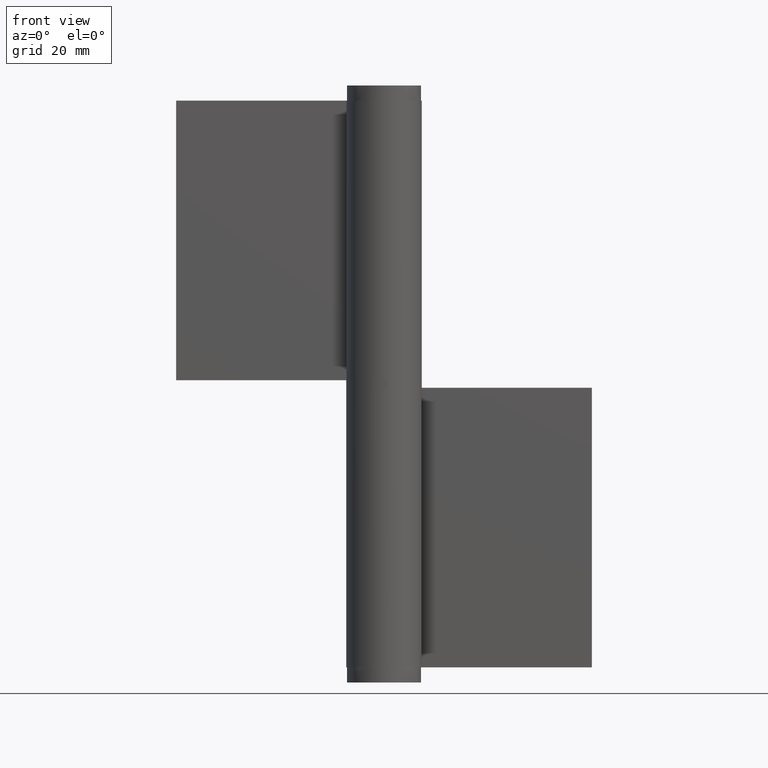
[diagram: clean part render]
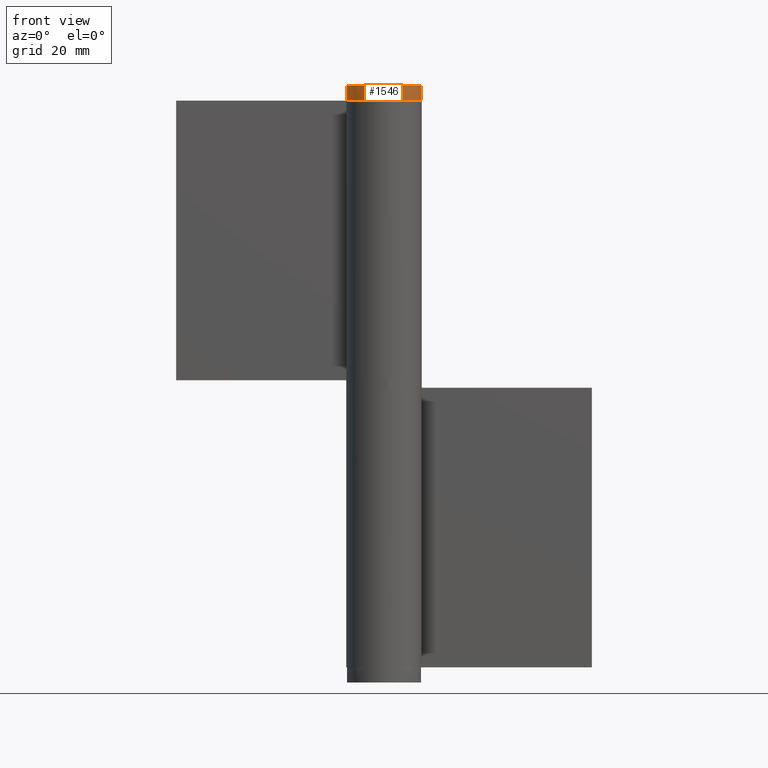
[diagram: same view with one face highlighted and labeled with its STEP entity id]
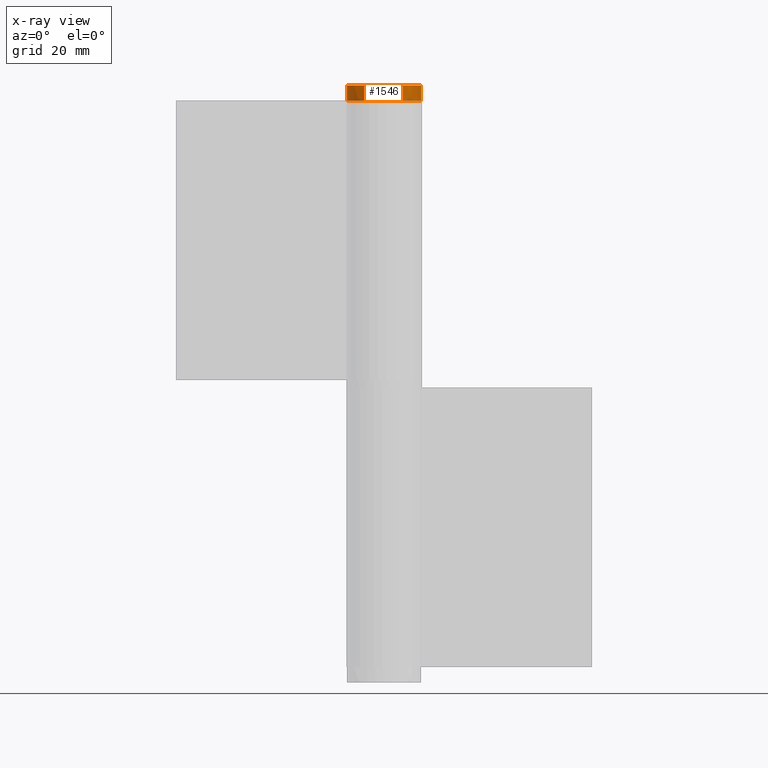
[diagram: x-ray of the same camera — body ghosted, the highlighted face saturated]
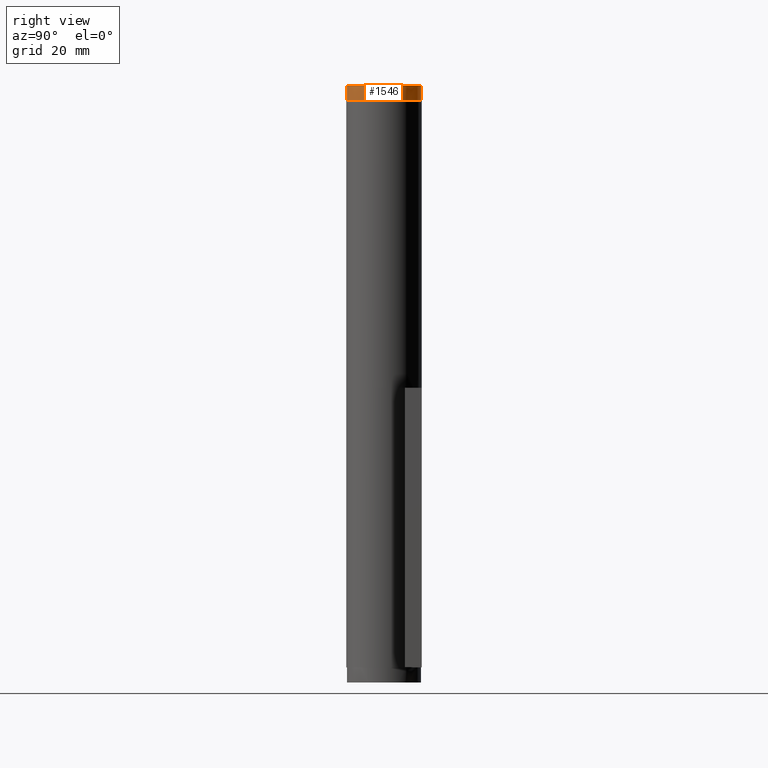
[diagram: same view with one face highlighted and labeled with its STEP entity id]
A machine part, front view. The second image highlights one B-rep face of the part: STEP entity #1546.
The next image is the same camera in x-ray: the body ghosted, the highlighted face saturated — about 0% of this face is hidden behind the body in this view.
A second angle (right view) of the same face is appended — the face is thin or edge-on in the first view.
In plain terms, the highlighted face is a freeform B-spline surface patch.
Its self-contained STEP definition (entity closure, byte-faithful):
#1397=CARTESIAN_POINT('',(-9.797958971132710,0.0,149.999985000000010));
#1398=VERTEX_POINT('',#1397);
#1399=CARTESIAN_POINT('',(9.797958971132710,0.0,149.999985000000010));
#1400=VERTEX_POINT('',#1399);
#1401=CARTESIAN_POINT('',(-9.797958971132710,0.0,149.999985000000010));
#1402=CARTESIAN_POINT('',(-9.797958971132710,9.797958971132710,149.999984999999980));
#1403=CARTESIAN_POINT('',(0.0,9.797958971132710,149.999985000000010));
#1404=CARTESIAN_POINT('',(9.797958971132710,9.797958971132710,149.999984999999980));
#1405=CARTESIAN_POINT('',(9.797958971132710,0.0,149.999985000000010));
#1413=(BOUNDED_CURVE()B_SPLINE_CURVE(2,(#1401,#1402,#1403,#1404,#1405),.UNSPECIFIED.,.F.,.U.)B_SPLINE_CURVE_WITH_KNOTS((3,2,3),(0.0,0.250000000000000,0.500000000000000),.UNSPECIFIED.)CURVE()GEOMETRIC_REPRESENTATION_ITEM()RATIONAL_B_SPLINE_CURVE((1.0,0.707106781186548,1.0,0.707106781186548,1.0))REPRESENTATION_ITEM(''));
#1414=EDGE_CURVE('',#1398,#1400,#1413,.T.);
#1416=CARTESIAN_POINT('',(9.797958971132710,0.0,149.999985000000010));
#1417=CARTESIAN_POINT('',(9.797958971132710,-9.797958971132710,149.999984999999980));
#1418=CARTESIAN_POINT('',(0.0,-9.797958971132710,149.999985000000010));
#1419=CARTESIAN_POINT('',(-9.797958971132710,-9.797958971132710,149.999984999999980));
#1420=CARTESIAN_POINT('',(-9.797958971132710,0.0,149.999985000000010));
#1428=(BOUNDED_CURVE()B_SPLINE_CURVE(2,(#1416,#1417,#1418,#1419,#1420),.UNSPECIFIED.,.F.,.U.)B_SPLINE_CURVE_WITH_KNOTS((3,2,3),(0.500000000000000,0.750000000000000,1.0),.UNSPECIFIED.)CURVE()GEOMETRIC_REPRESENTATION_ITEM()RATIONAL_B_SPLINE_CURVE((1.0,0.707106781186548,1.0,0.707106781186548,1.0))REPRESENTATION_ITEM(''));
#1429=EDGE_CURVE('',#1400,#1398,#1428,.T.);
#1457=CARTESIAN_POINT('',(9.797958000000001,0.0,153.999985000000010));
#1458=VERTEX_POINT('',#1457);
#1459=CARTESIAN_POINT('',(-9.797958000000001,0.0,153.999985000000010));
#1460=VERTEX_POINT('',#1459);
#1461=CARTESIAN_POINT('',(9.797958000000001,0.0,153.999985000000010));
#1462=CARTESIAN_POINT('',(9.797958000000001,-9.797958000000001,153.999984999999980));
#1463=CARTESIAN_POINT('',(0.0,-9.797958000000001,153.999985000000010));
#1464=CARTESIAN_POINT('',(-9.797958000000001,-9.797958000000001,153.999984999999980));
#1465=CARTESIAN_POINT('',(-9.797958000000001,0.0,153.999985000000010));
#1473=(BOUNDED_CURVE()B_SPLINE_CURVE(2,(#1461,#1462,#1463,#1464,#1465),.UNSPECIFIED.,.F.,.U.)B_SPLINE_CURVE_WITH_KNOTS((3,2,3),(0.500000000000000,0.750000000000000,1.0),.UNSPECIFIED.)CURVE()GEOMETRIC_REPRESENTATION_ITEM()RATIONAL_B_SPLINE_CURVE((1.0,0.707106781186548,1.0,0.707106781186548,1.0))REPRESENTATION_ITEM(''));
#1474=EDGE_CURVE('',#1458,#1460,#1473,.T.);
#1476=CARTESIAN_POINT('',(-9.797958000000001,0.0,153.999985000000010));
#1477=CARTESIAN_POINT('',(-9.797958000000001,9.797958000000001,153.999984999999980));
#1478=CARTESIAN_POINT('',(0.0,9.797958000000001,153.999985000000010));
#1479=CARTESIAN_POINT('',(9.797958000000001,9.797958000000001,153.999984999999980));
#1480=CARTESIAN_POINT('',(9.797958000000001,0.0,153.999985000000010));
#1488=(BOUNDED_CURVE()B_SPLINE_CURVE(2,(#1476,#1477,#1478,#1479,#1480),.UNSPECIFIED.,.F.,.U.)B_SPLINE_CURVE_WITH_KNOTS((3,2,3),(0.0,0.250000000000000,0.500000000000000),.UNSPECIFIED.)CURVE()GEOMETRIC_REPRESENTATION_ITEM()RATIONAL_B_SPLINE_CURVE((1.0,0.707106781186548,1.0,0.707106781186548,1.0))REPRESENTATION_ITEM(''));
#1489=EDGE_CURVE('',#1460,#1458,#1488,.T.);
#1494=CARTESIAN_POINT('',(-5.998846486579732,5.998846486579741,157.294102647058850));
#1495=CARTESIAN_POINT('',(-5.562566742101208,7.416755656134953,156.181803181818220));
#1496=CARTESIAN_POINT('',(-2.428104530282275,9.712418121129106,154.380937380952420));
#1497=CARTESIAN_POINT('',(2.428104530282275,9.712418121129106,154.380937380952420));
#1498=CARTESIAN_POINT('',(5.562566742101208,7.416755656134953,156.181803181818220));
#1499=CARTESIAN_POINT('',(5.998846486579732,5.998846486579741,157.294102647058850));
#1500=CARTESIAN_POINT('',(-7.416755656134945,5.562566742101216,156.181803181818220));
#1501=CARTESIAN_POINT('',(-7.284313590846826,7.284313590846832,154.380937380952420));
#1502=CARTESIAN_POINT('',(-3.516565181788126,10.549695545364377,150.965502241379310));
#1503=CARTESIAN_POINT('',(3.516565181788126,10.549695545364377,150.965502241379310));
#1504=CARTESIAN_POINT('',(7.284313590846826,7.284313590846832,154.380937380952420));
#1505=CARTESIAN_POINT('',(7.416755656134945,5.562566742101216,156.181803181818220));
#1506=CARTESIAN_POINT('',(-9.712418121129103,2.428104530282280,154.380937380952420));
#1507=CARTESIAN_POINT('',(-10.549695545364377,3.516565181788125,150.965502241379310));
#1508=CARTESIAN_POINT('',(-6.373774391991004,6.373774391990986,141.999985000000010));
#1509=CARTESIAN_POINT('',(6.373774391991004,6.373774391990986,141.999985000000010));
#1510=CARTESIAN_POINT('',(10.549695545364377,3.516565181788125,150.965502241379310));
#1511=CARTESIAN_POINT('',(9.712418121129103,2.428104530282280,154.380937380952420));
#1512=CARTESIAN_POINT('',(-9.712418121129103,-2.428104530282272,154.380937380952500));
#1513=CARTESIAN_POINT('',(-10.549695545364377,-3.516565181788128,150.965502241379310));
#1514=CARTESIAN_POINT('',(-6.373774391991004,-6.373774391991022,141.999985000000010));
#1515=CARTESIAN_POINT('',(6.373774391991004,-6.373774391991022,141.999985000000010));
#1516=CARTESIAN_POINT('',(10.549695545364377,-3.516565181788128,150.965502241379310));
#1517=CARTESIAN_POINT('',(9.712418121129103,-2.428104530282272,154.380937380952500));
#1518=CARTESIAN_POINT('',(-7.416755656134945,-5.562566742101201,156.181803181818220));
#1519=CARTESIAN_POINT('',(-7.284313590846826,-7.284313590846821,154.380937380952500));
#1520=CARTESIAN_POINT('',(-3.516565181788126,-10.549695545364385,150.965502241379310));
#1521=CARTESIAN_POINT('',(3.516565181788126,-10.549695545364385,150.965502241379310));
#1522=CARTESIAN_POINT('',(7.284313590846826,-7.284313590846821,154.380937380952500));
#1523=CARTESIAN_POINT('',(7.416755656134945,-5.562566742101201,156.181803181818220));
#1524=CARTESIAN_POINT('',(-5.998846486579732,-5.998846486579723,157.294102647058880));
#1525=CARTESIAN_POINT('',(-5.562566742101208,-7.416755656134939,156.181803181818250));
#1526=CARTESIAN_POINT('',(-2.428104530282275,-9.712418121129099,154.380937380952500));
#1527=CARTESIAN_POINT('',(2.428104530282275,-9.712418121129099,154.380937380952500));
#1528=CARTESIAN_POINT('',(5.562566742101208,-7.416755656134939,156.181803181818250));
#1529=CARTESIAN_POINT('',(5.998846486579732,-5.998846486579723,157.294102647058880));
#1537=(BOUNDED_SURFACE()B_SPLINE_SURFACE(2,2,((#1494,#1500,#1506,#1512,#1518,#1524),(#1495,#1501,#1507,#1513,#1519,#1525),(#1496,#1502,#1508,#1514,#1520,#1526),(#1497,#1503,#1509,#1515,#1521,#1527),(#1498,#1504,#1510,#1516,#1522,#1528),(#1499,#1505,#1511,#1517,#1523,#1529)),.UNSPECIFIED.,.F.,.F.,.U.)B_SPLINE_SURFACE_WITH_KNOTS((3,1,1,1,3),(3,1,1,1,3),(0.0,10.595365223049930,21.190730446099870,31.786095669149798,42.381460892199733),(0.0,10.595365223049940,21.190730446099881,31.786095669149830,42.381460892199769),.UNSPECIFIED.)GEOMETRIC_REPRESENTATION_ITEM()RATIONAL_B_SPLINE_SURFACE(((4.250000000000027,3.437500000000020,2.625000000000013,2.625000000000013,3.437500000000020,4.250000000000027),(3.437500000000020,2.625000000000013,1.812500000000007,1.812500000000007,2.625000000000013,3.437500000000020),(2.625000000000013,1.812500000000007,1.0,1.0,1.812500000000007,2.625000000000013),(2.625000000000013,1.812500000000007,1.0,1.0,1.812500000000007,2.625000000000013),(3.437500000000020,2.625000000000013,1.812500000000007,1.812500000000007,2.625000000000013,3.437500000000020),(4.250000000000027,3.437500000000020,2.625000000000013,2.625000000000013,3.437500000000020,4.250000000000027)))REPRESENTATION_ITEM('')SURFACE());
#1538=ORIENTED_EDGE('',*,*,#1414,.F.);
#1539=ORIENTED_EDGE('',*,*,#1429,.F.);
#1540=EDGE_LOOP('',(#1538,#1539));
#1541=FACE_OUTER_BOUND('',#1540,.T.);
#1542=ORIENTED_EDGE('',*,*,#1489,.T.);
#1543=ORIENTED_EDGE('',*,*,#1474,.T.);
#1544=EDGE_LOOP('',(#1542,#1543));
#1545=FACE_BOUND('',#1544,.T.);
#1546=ADVANCED_FACE('',(#1541,#1545),#1537,.T.);